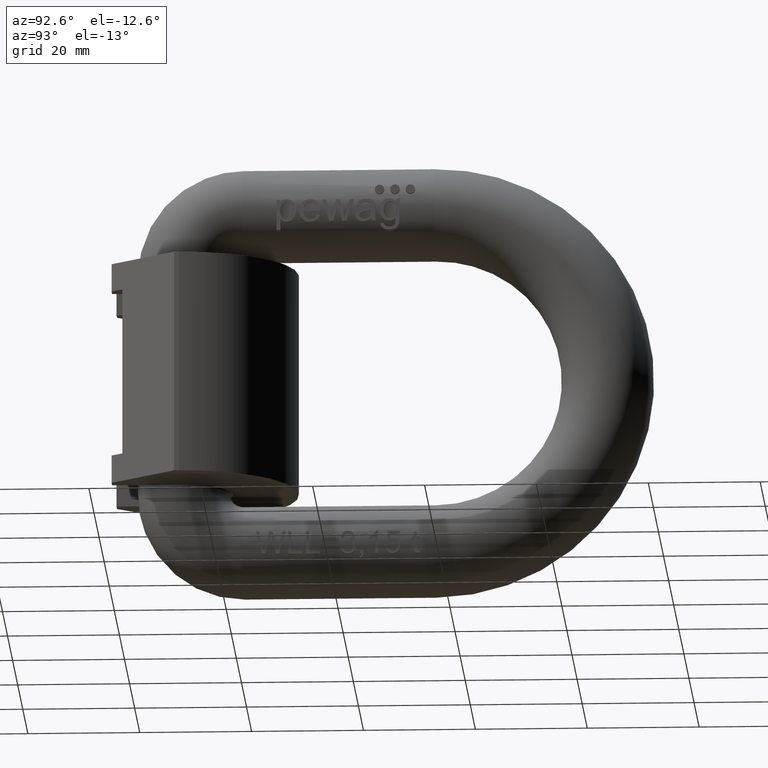
[diagram: clean part render]
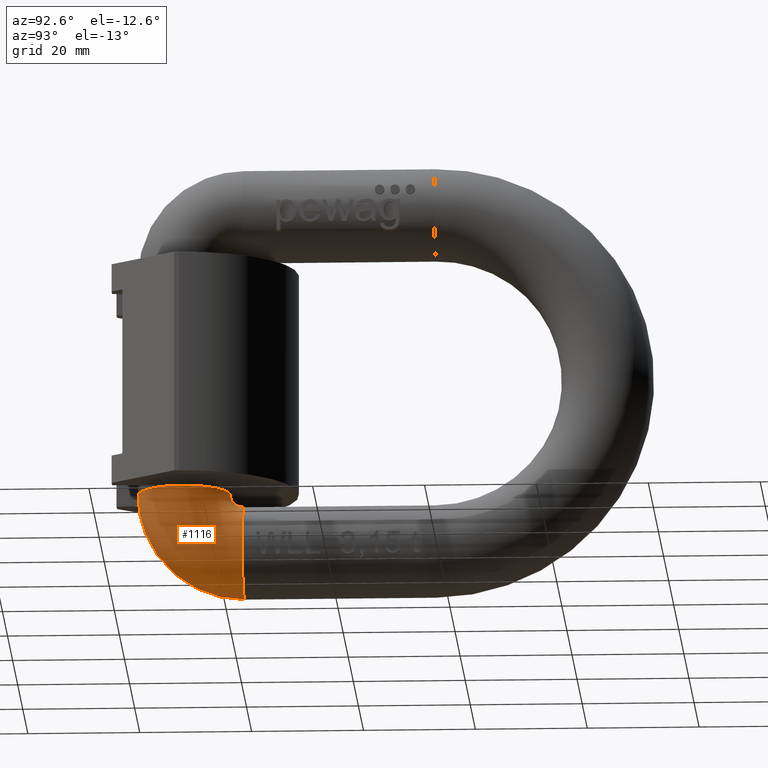
[diagram: same view with one face highlighted and labeled with its STEP entity id]
A machine part, auxiliary view. The second image highlights one B-rep face of the part: STEP entity #1116.
In plain terms, the highlighted toroidal blend (fillet) surface has major radius 10.75 mm and minor (blend) radius 8.25 mm.
Its self-contained STEP definition (entity closure, byte-faithful):
#203=TOROIDAL_SURFACE('',#8143,10.75,8.25);
#1021=FACE_BOUND('',#2226,.T.);
#1022=FACE_BOUND('',#2227,.T.);
#1116=ADVANCED_FACE('',(#1021,#1022),#203,.T.);
#2226=EDGE_LOOP('',(#3156));
#2227=EDGE_LOOP('',(#3157));
#2657=CIRCLE('',#8047,8.25);
#2703=CIRCLE('',#8141,8.25);
#3156=ORIENTED_EDGE('',*,*,#6129,.F.);
#3157=ORIENTED_EDGE('',*,*,#5863,.T.);
#5083=VERTEX_POINT('',#10668);
#5349=VERTEX_POINT('',#12818);
#5863=EDGE_CURVE('',#5083,#5083,#2657,.T.);
#6129=EDGE_CURVE('',#5349,#5349,#2703,.T.);
#8047=AXIS2_PLACEMENT_3D('',#10667,#8521,#8522);
#8141=AXIS2_PLACEMENT_3D('',#12817,#8769,#8770);
#8143=AXIS2_PLACEMENT_3D('',#12820,#8773,#8774);
#8521=DIRECTION('',(0.,-1.,4.14915466137285E-16));
#8522=DIRECTION('',(0.,-4.20539024479226E-16,-1.));
#8769=DIRECTION('',(0.,-3.64311976247065E-15,1.));
#8770=DIRECTION('',(0.,-1.,-3.78485122031303E-15));
#8773=DIRECTION('',(-1.,0.,0.));
#8774=DIRECTION('',(0.,0.,1.));
#10667=CARTESIAN_POINT('',(0.,23.25,-30.75));
#10668=CARTESIAN_POINT('',(0.,23.25,-39.));
#12817=CARTESIAN_POINT('',(0.,12.5,-20.));
#12818=CARTESIAN_POINT('',(0.,4.25,-20.0000000000001));
#12820=CARTESIAN_POINT('',(0.,23.25,-20.));